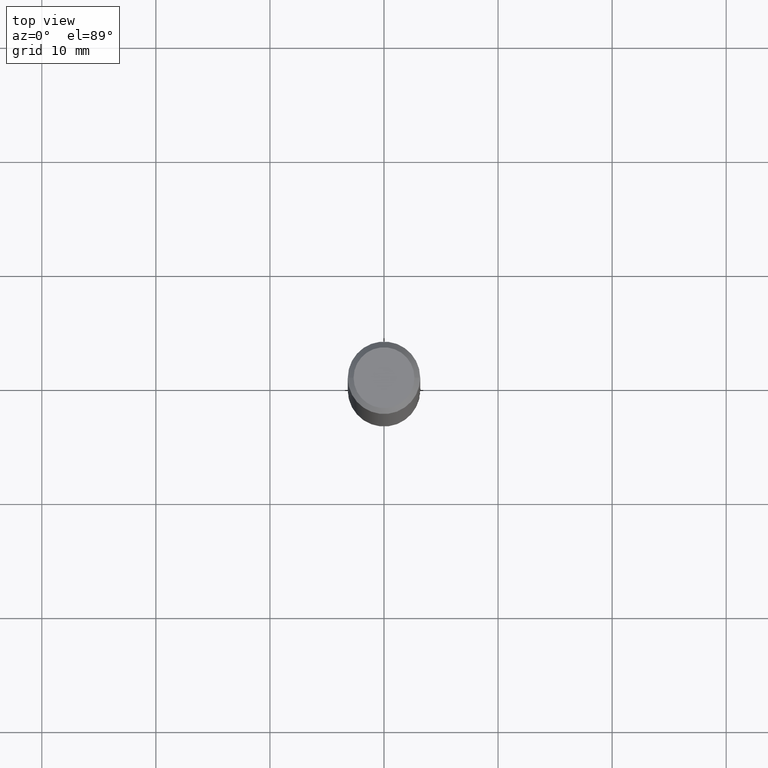
[diagram: clean part render]
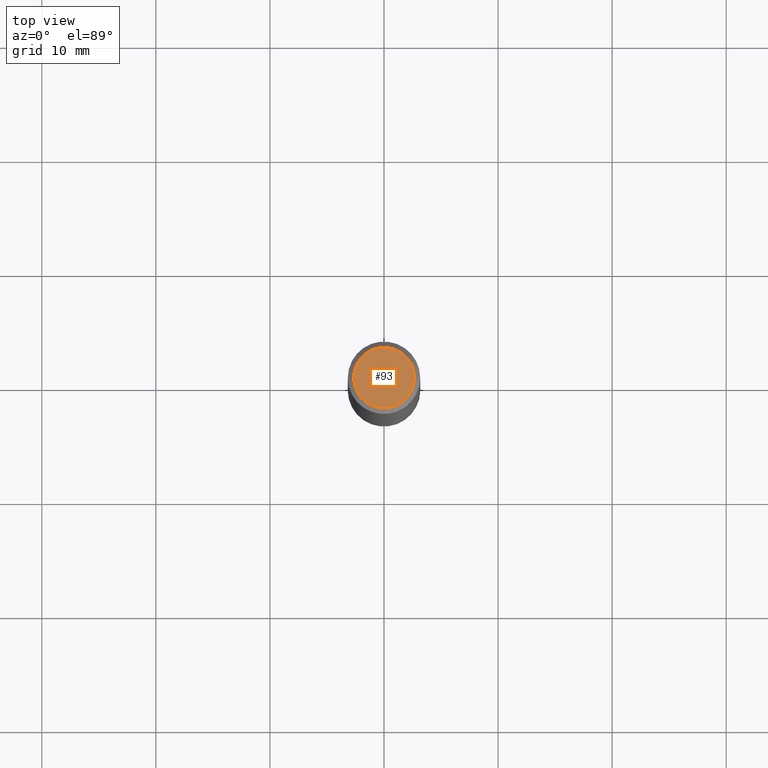
[diagram: same view with one face highlighted and labeled with its STEP entity id]
A machine part, top view. The second image highlights one B-rep face of the part: STEP entity #93.
In plain terms, the highlighted planar face has unit normal (0, -0, -1).
Its self-contained STEP definition (entity closure, byte-faithful):
#15 = DIRECTION ( 'NONE',  ( 2.438088387897960049E-29, -3.491481338843145188E-15, -1.000000000000000000 ) ) ;
#16 = ORIENTED_EDGE ( 'NONE', *, *, #207, .T. ) ;
#20 = DIRECTION ( 'NONE',  ( -2.445468806185136597E-29, 3.491481338843145583E-15, 1.000000000000000000 ) ) ;
#44 = FACE_OUTER_BOUND ( 'NONE', #312, .T. ) ;
#54 = AXIS2_PLACEMENT_3D ( 'NONE', #105, #299, #187 ) ;
#68 = CARTESIAN_POINT ( 'NONE',  ( 7.332110811570563480E-16, 0.1049999999999997741, -3.666055405785295052E-16 ) ) ;
#81 = EDGE_CURVE ( 'NONE', #100, #308, #324, .T. ) ;
#93 = ADVANCED_FACE ( 'NONE', ( #44 ), #267, .F. ) ;
#100 = VERTEX_POINT ( 'NONE', #358 ) ;
#105 = CARTESIAN_POINT ( 'NONE',  ( 0.000000000000000000, 0.000000000000000000, 0.000000000000000000 ) ) ;
#114 = AXIS2_PLACEMENT_3D ( 'NONE', #160, #20, #269 ) ;
#137 = DIRECTION ( 'NONE',  ( -1.000000000000000000, 6.982962677686265922E-15, -4.876176775795935793E-29 ) ) ;
#158 = AXIS2_PLACEMENT_3D ( 'NONE', #68, #15, #137 ) ;
#160 = CARTESIAN_POINT ( 'NONE',  ( 0.000000000000000000, 0.000000000000000000, 0.000000000000000000 ) ) ;
#187 = DIRECTION ( 'NONE',  ( 1.000000000000000000, -6.982962677686265922E-15, 4.876176775795935232E-29 ) ) ;
#207 = EDGE_CURVE ( 'NONE', #308, #100, #361, .T. ) ;
#229 = CARTESIAN_POINT ( 'NONE',  ( 0.1049999999999997741, -8.238720831321559881E-16, 5.444276250344138855E-30 ) ) ;
#230 = ORIENTED_EDGE ( 'NONE', *, *, #81, .T. ) ;
#267 = PLANE ( 'NONE',  #158 ) ;
#269 = DIRECTION ( 'NONE',  ( 1.000000000000000000, -6.982962677686265922E-15, 4.876176775795935232E-29 ) ) ;
#299 = DIRECTION ( 'NONE',  ( -2.445468806185136597E-29, 3.491481338843145583E-15, 1.000000000000000000 ) ) ;
#308 = VERTEX_POINT ( 'NONE', #229 ) ;
#312 = EDGE_LOOP ( 'NONE', ( #230, #16 ) ) ;
#324 = CIRCLE ( 'NONE', #54, 0.1049999999999997741 ) ;
#358 = CARTESIAN_POINT ( 'NONE',  ( -0.1049999999999997741, 7.681258945454875041E-16, -5.249639473182155366E-30 ) ) ;
#361 = CIRCLE ( 'NONE', #114, 0.1049999999999997741 ) ;